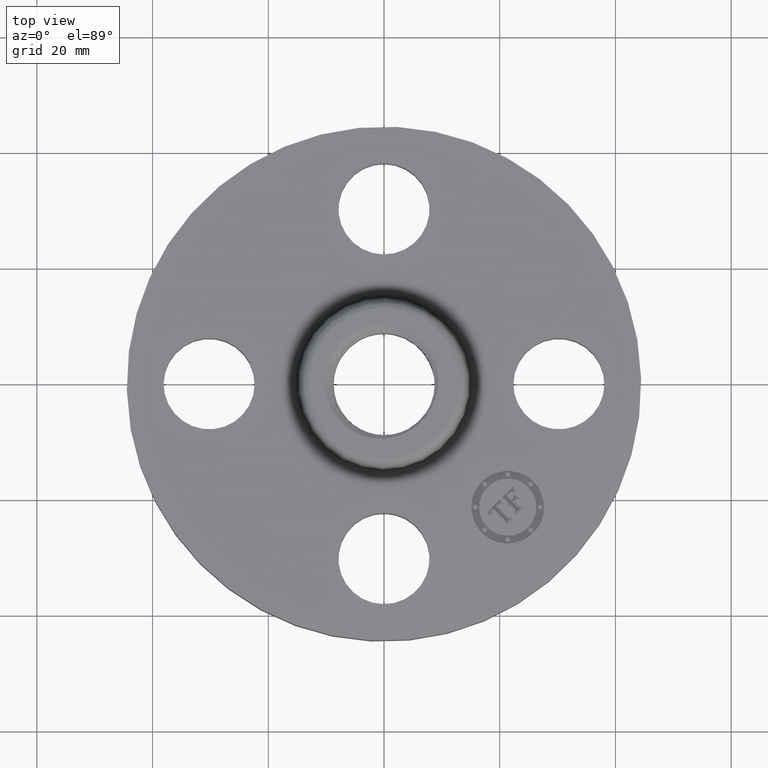
[diagram: clean part render]
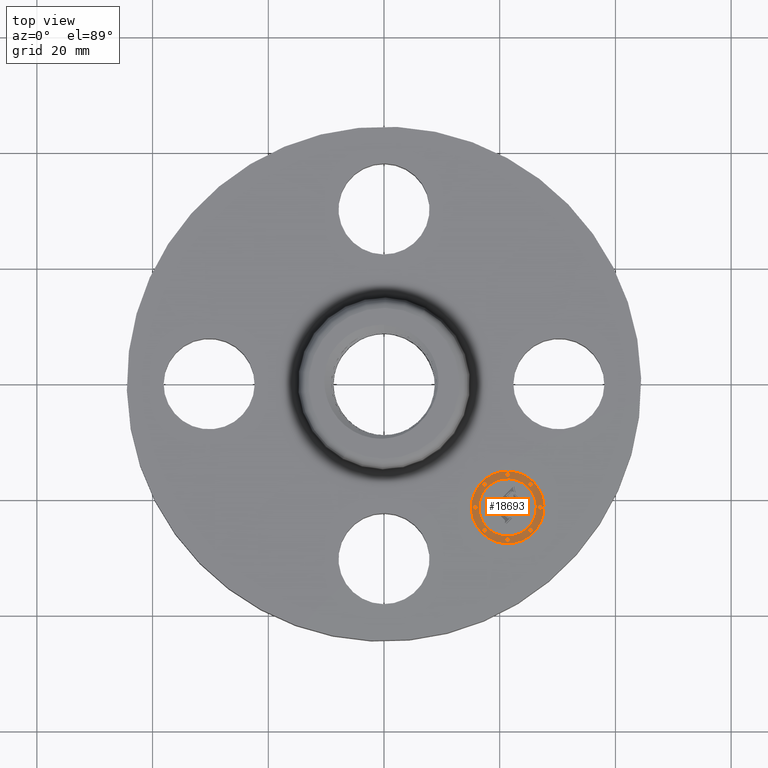
[diagram: same view with one face highlighted and labeled with its STEP entity id]
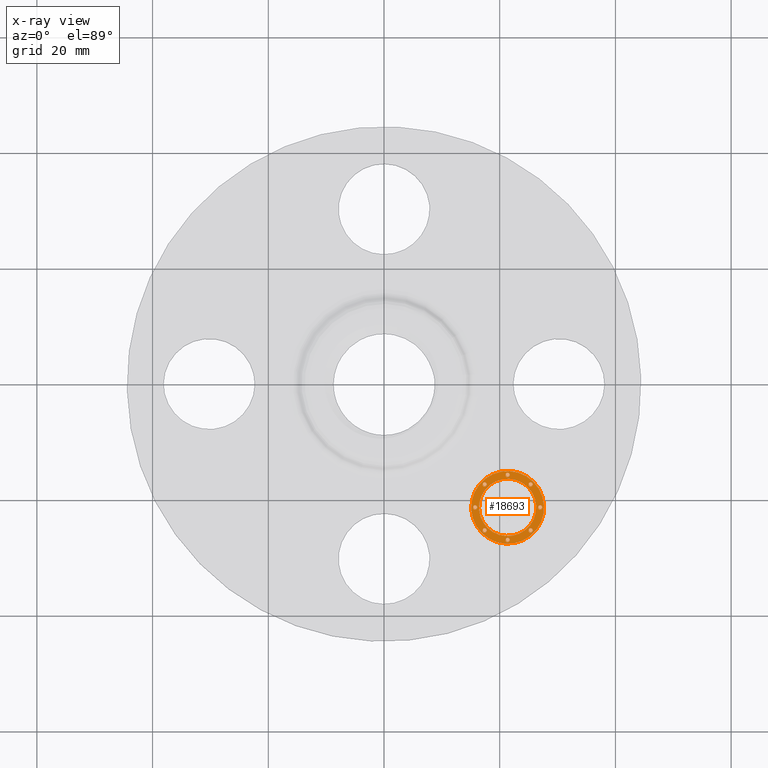
[diagram: x-ray of the same camera — body ghosted, the highlighted face saturated]
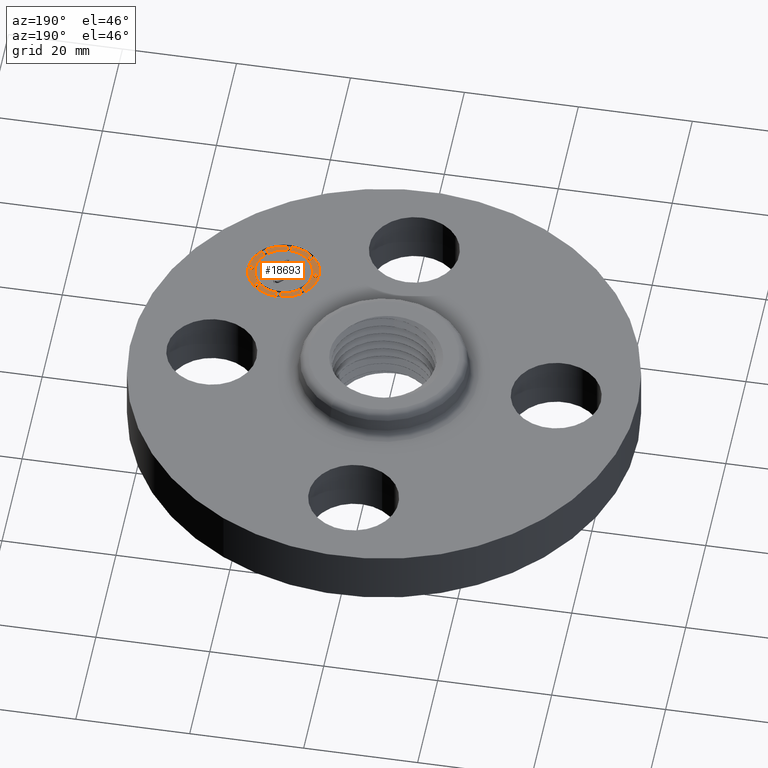
[diagram: same view with one face highlighted and labeled with its STEP entity id]
A machine part, top view. The second image highlights one B-rep face of the part: STEP entity #18693.
The next image is the same camera in x-ray: the body ghosted, the highlighted face saturated — about 0% of this face is hidden behind the body in this view.
A second angle (auxiliary view) of the same face is appended — the face is thin or edge-on in the first view.
In plain terms, the highlighted planar face has unit normal (0, -0, 1).
Its self-contained STEP definition (entity closure, byte-faithful):
#7344=AXIS2_PLACEMENT_3D('Plane Axis2P3D',#7341,#7342,#7343) ;
#18515=AXIS2_PLACEMENT_3D('Circle Axis2P3D',#18513,#18514,$) ;
#18524=AXIS2_PLACEMENT_3D('Circle Axis2P3D',#18522,#18523,$) ;
#18533=AXIS2_PLACEMENT_3D('Circle Axis2P3D',#18531,#18532,$) ;
#18542=AXIS2_PLACEMENT_3D('Circle Axis2P3D',#18540,#18541,$) ;
#18551=AXIS2_PLACEMENT_3D('Circle Axis2P3D',#18549,#18550,$) ;
#18560=AXIS2_PLACEMENT_3D('Circle Axis2P3D',#18558,#18559,$) ;
#18569=AXIS2_PLACEMENT_3D('Circle Axis2P3D',#18567,#18568,$) ;
#18578=AXIS2_PLACEMENT_3D('Circle Axis2P3D',#18576,#18577,$) ;
#18587=AXIS2_PLACEMENT_3D('Circle Axis2P3D',#18585,#18586,$) ;
#18596=AXIS2_PLACEMENT_3D('Circle Axis2P3D',#18594,#18595,$) ;
#18605=AXIS2_PLACEMENT_3D('Circle Axis2P3D',#18603,#18604,$) ;
#18614=AXIS2_PLACEMENT_3D('Circle Axis2P3D',#18612,#18613,$) ;
#18623=AXIS2_PLACEMENT_3D('Circle Axis2P3D',#18621,#18622,$) ;
#18632=AXIS2_PLACEMENT_3D('Circle Axis2P3D',#18630,#18631,$) ;
#18641=AXIS2_PLACEMENT_3D('Circle Axis2P3D',#18639,#18640,$) ;
#18650=AXIS2_PLACEMENT_3D('Circle Axis2P3D',#18648,#18649,$) ;
#18659=AXIS2_PLACEMENT_3D('Circle Axis2P3D',#18657,#18658,$) ;
#18668=AXIS2_PLACEMENT_3D('Circle Axis2P3D',#18666,#18667,$) ;
#18677=AXIS2_PLACEMENT_3D('Circle Axis2P3D',#18675,#18676,$) ;
#18686=AXIS2_PLACEMENT_3D('Circle Axis2P3D',#18684,#18685,$) ;
#7341=CARTESIAN_POINT('Axis2P3D Location',(0.,0.,0.365000000001)) ;
#18513=CARTESIAN_POINT('Axis2P3D Location',(0.841457069615,-0.841457069615,0.365000000001)) ;
#18517=CARTESIAN_POINT('Vertex',(1.01646599796,-0.666448141271,0.365000000001)) ;
#18519=CARTESIAN_POINT('Vertex',(0.666448141271,-1.01646599796,0.365000000001)) ;
#18522=CARTESIAN_POINT('Axis2P3D Location',(0.841457069615,-0.841457069615,0.365000000001)) ;
#18531=CARTESIAN_POINT('Axis2P3D Location',(0.841457069615,-0.841457069615,0.365000000001)) ;
#18535=CARTESIAN_POINT('Vertex',(0.703571247283,-0.979342891947,0.365000000001)) ;
#18537=CARTESIAN_POINT('Vertex',(0.979342891947,-0.703571247283,0.365000000001)) ;
#18540=CARTESIAN_POINT('Axis2P3D Location',(0.841457069615,-0.841457069615,0.365000000001)) ;
#18549=CARTESIAN_POINT('Axis2P3D Location',(0.685009694277,-0.685009694277,0.365000000001)) ;
#18553=CARTESIAN_POINT('Vertex',(0.674403092559,-0.695616295995,0.365000000001)) ;
#18555=CARTESIAN_POINT('Vertex',(0.695616295995,-0.674403092559,0.365000000001)) ;
#18558=CARTESIAN_POINT('Axis2P3D Location',(0.685009694277,-0.685009694277,0.365000000001)) ;
#18567=CARTESIAN_POINT('Axis2P3D Location',(0.997904444954,-0.685009694277,0.365000000001)) ;
#18571=CARTESIAN_POINT('Vertex',(0.987297843236,-0.695616295995,0.365000000001)) ;
#18573=CARTESIAN_POINT('Vertex',(1.00851104667,-0.674403092559,0.365000000001)) ;
#18576=CARTESIAN_POINT('Axis2P3D Location',(0.997904444954,-0.685009694277,0.365000000001)) ;
#18585=CARTESIAN_POINT('Axis2P3D Location',(0.841457069615,-0.620207069614,0.365000000001)) ;
#18589=CARTESIAN_POINT('Vertex',(0.830850467898,-0.630813671332,0.365000000001)) ;
#18591=CARTESIAN_POINT('Vertex',(0.852063671333,-0.609600467897,0.365000000001)) ;
#18594=CARTESIAN_POINT('Axis2P3D Location',(0.841457069615,-0.620207069614,0.365000000001)) ;
#18603=CARTESIAN_POINT('Axis2P3D Location',(0.997904444954,-0.997904444954,0.365000000001)) ;
#18607=CARTESIAN_POINT('Vertex',(0.987297843236,-1.00851104667,0.365000000001)) ;
#18609=CARTESIAN_POINT('Vertex',(1.00851104667,-0.987297843236,0.365000000001)) ;
#18612=CARTESIAN_POINT('Axis2P3D Location',(0.997904444954,-0.997904444954,0.365000000001)) ;
#18621=CARTESIAN_POINT('Axis2P3D Location',(1.06270706962,-0.841457069615,0.365000000001)) ;
#18625=CARTESIAN_POINT('Vertex',(1.0521004679,-0.852063671333,0.365000000001)) ;
#18627=CARTESIAN_POINT('Vertex',(1.07331367133,-0.830850467898,0.365000000001)) ;
#18630=CARTESIAN_POINT('Axis2P3D Location',(1.06270706962,-0.841457069615,0.365000000001)) ;
#18639=CARTESIAN_POINT('Axis2P3D Location',(0.685009694277,-0.997904444954,0.365000000001)) ;
#18643=CARTESIAN_POINT('Vertex',(0.695616295995,-0.987297843236,0.365000000001)) ;
#18645=CARTESIAN_POINT('Vertex',(0.674403092559,-1.00851104667,0.365000000001)) ;
#18648=CARTESIAN_POINT('Axis2P3D Location',(0.685009694277,-0.997904444954,0.365000000001)) ;
#18657=CARTESIAN_POINT('Axis2P3D Location',(0.620207069614,-0.841457069615,0.365000000001)) ;
#18661=CARTESIAN_POINT('Vertex',(0.630813671332,-0.830850467898,0.365000000001)) ;
#18663=CARTESIAN_POINT('Vertex',(0.609600467897,-0.852063671333,0.365000000001)) ;
#18666=CARTESIAN_POINT('Axis2P3D Location',(0.620207069614,-0.841457069615,0.365000000001)) ;
#18675=CARTESIAN_POINT('Axis2P3D Location',(0.841457069615,-1.06270706962,0.365000000001)) ;
#18679=CARTESIAN_POINT('Vertex',(0.852063671333,-1.0521004679,0.365000000001)) ;
#18681=CARTESIAN_POINT('Vertex',(0.830850467898,-1.07331367133,0.365000000001)) ;
#18684=CARTESIAN_POINT('Axis2P3D Location',(0.841457069615,-1.06270706962,0.365000000001)) ;
#7342=DIRECTION('Axis2P3D Direction',(0.,-0.,0.0393700787402)) ;
#7343=DIRECTION('Axis2P3D XDirection',(0.027838849653,0.027838849653,0.)) ;
#18514=DIRECTION('Axis2P3D Direction',(0.,-0.,0.0393700787402)) ;
#18523=DIRECTION('Axis2P3D Direction',(0.,-0.,0.0393700787402)) ;
#18532=DIRECTION('Axis2P3D Direction',(0.,-0.,0.0393700787402)) ;
#18541=DIRECTION('Axis2P3D Direction',(0.,-0.,0.0393700787402)) ;
#18550=DIRECTION('Axis2P3D Direction',(0.,-0.,0.0393700787402)) ;
#18559=DIRECTION('Axis2P3D Direction',(0.,-0.,0.0393700787402)) ;
#18568=DIRECTION('Axis2P3D Direction',(0.,-0.,0.0393700787402)) ;
#18577=DIRECTION('Axis2P3D Direction',(0.,-0.,0.0393700787402)) ;
#18586=DIRECTION('Axis2P3D Direction',(0.,-0.,0.0393700787402)) ;
#18595=DIRECTION('Axis2P3D Direction',(0.,-0.,0.0393700787402)) ;
#18604=DIRECTION('Axis2P3D Direction',(0.,-0.,0.0393700787402)) ;
#18613=DIRECTION('Axis2P3D Direction',(0.,-0.,0.0393700787402)) ;
#18622=DIRECTION('Axis2P3D Direction',(0.,-0.,0.0393700787402)) ;
#18631=DIRECTION('Axis2P3D Direction',(0.,-0.,0.0393700787402)) ;
#18640=DIRECTION('Axis2P3D Direction',(0.,-0.,0.0393700787402)) ;
#18649=DIRECTION('Axis2P3D Direction',(0.,-0.,0.0393700787402)) ;
#18658=DIRECTION('Axis2P3D Direction',(0.,-0.,0.0393700787402)) ;
#18667=DIRECTION('Axis2P3D Direction',(0.,-0.,0.0393700787402)) ;
#18676=DIRECTION('Axis2P3D Direction',(0.,-0.,0.0393700787402)) ;
#18685=DIRECTION('Axis2P3D Direction',(0.,-0.,0.0393700787402)) ;
#18528=ORIENTED_EDGE('',*,*,#18521,.T.) ;
#18529=ORIENTED_EDGE('',*,*,#18526,.T.) ;
#18546=ORIENTED_EDGE('',*,*,#18539,.F.) ;
#18547=ORIENTED_EDGE('',*,*,#18544,.F.) ;
#18564=ORIENTED_EDGE('',*,*,#18557,.F.) ;
#18565=ORIENTED_EDGE('',*,*,#18562,.F.) ;
#18582=ORIENTED_EDGE('',*,*,#18575,.F.) ;
#18583=ORIENTED_EDGE('',*,*,#18580,.F.) ;
#18600=ORIENTED_EDGE('',*,*,#18593,.F.) ;
#18601=ORIENTED_EDGE('',*,*,#18598,.F.) ;
#18618=ORIENTED_EDGE('',*,*,#18611,.F.) ;
#18619=ORIENTED_EDGE('',*,*,#18616,.F.) ;
#18636=ORIENTED_EDGE('',*,*,#18629,.F.) ;
#18637=ORIENTED_EDGE('',*,*,#18634,.F.) ;
#18654=ORIENTED_EDGE('',*,*,#18647,.F.) ;
#18655=ORIENTED_EDGE('',*,*,#18652,.F.) ;
#18672=ORIENTED_EDGE('',*,*,#18665,.F.) ;
#18673=ORIENTED_EDGE('',*,*,#18670,.F.) ;
#18690=ORIENTED_EDGE('',*,*,#18683,.F.) ;
#18691=ORIENTED_EDGE('',*,*,#18688,.F.) ;
#18548=FACE_BOUND('',#18545,.T.) ;
#18566=FACE_BOUND('',#18563,.T.) ;
#18584=FACE_BOUND('',#18581,.T.) ;
#18602=FACE_BOUND('',#18599,.T.) ;
#18620=FACE_BOUND('',#18617,.T.) ;
#18638=FACE_BOUND('',#18635,.T.) ;
#18656=FACE_BOUND('',#18653,.T.) ;
#18674=FACE_BOUND('',#18671,.T.) ;
#18692=FACE_BOUND('',#18689,.T.) ;
#18693=ADVANCED_FACE('PartBody',(#18530,#18548,#18566,#18584,#18602,#18620,#18638,#18656,#18674,#18692),#7345,.T.) ;
#18516=CIRCLE('generated circle',#18515,0.247500000001) ;
#18525=CIRCLE('generated circle',#18524,0.247500000001) ;
#18534=CIRCLE('generated circle',#18533,0.195000000001) ;
#18543=CIRCLE('generated circle',#18542,0.195000000001) ;
#18552=CIRCLE('generated circle',#18551,0.0150000000001) ;
#18561=CIRCLE('generated circle',#18560,0.0150000000001) ;
#18570=CIRCLE('generated circle',#18569,0.0150000000001) ;
#18579=CIRCLE('generated circle',#18578,0.0150000000001) ;
#18588=CIRCLE('generated circle',#18587,0.0150000000001) ;
#18597=CIRCLE('generated circle',#18596,0.0150000000001) ;
#18606=CIRCLE('generated circle',#18605,0.0150000000001) ;
#18615=CIRCLE('generated circle',#18614,0.0150000000001) ;
#18624=CIRCLE('generated circle',#18623,0.0150000000001) ;
#18633=CIRCLE('generated circle',#18632,0.0150000000001) ;
#18642=CIRCLE('generated circle',#18641,0.0150000000001) ;
#18651=CIRCLE('generated circle',#18650,0.0150000000001) ;
#18660=CIRCLE('generated circle',#18659,0.0150000000001) ;
#18669=CIRCLE('generated circle',#18668,0.0150000000001) ;
#18678=CIRCLE('generated circle',#18677,0.0150000000001) ;
#18687=CIRCLE('generated circle',#18686,0.0150000000001) ;
#18521=EDGE_CURVE('',#18518,#18520,#18516,.T.) ;
#18526=EDGE_CURVE('',#18520,#18518,#18525,.T.) ;
#18539=EDGE_CURVE('',#18536,#18538,#18534,.T.) ;
#18544=EDGE_CURVE('',#18538,#18536,#18543,.T.) ;
#18557=EDGE_CURVE('',#18554,#18556,#18552,.T.) ;
#18562=EDGE_CURVE('',#18556,#18554,#18561,.T.) ;
#18575=EDGE_CURVE('',#18572,#18574,#18570,.T.) ;
#18580=EDGE_CURVE('',#18574,#18572,#18579,.T.) ;
#18593=EDGE_CURVE('',#18590,#18592,#18588,.T.) ;
#18598=EDGE_CURVE('',#18592,#18590,#18597,.T.) ;
#18611=EDGE_CURVE('',#18608,#18610,#18606,.T.) ;
#18616=EDGE_CURVE('',#18610,#18608,#18615,.T.) ;
#18629=EDGE_CURVE('',#18626,#18628,#18624,.T.) ;
#18634=EDGE_CURVE('',#18628,#18626,#18633,.T.) ;
#18647=EDGE_CURVE('',#18644,#18646,#18642,.T.) ;
#18652=EDGE_CURVE('',#18646,#18644,#18651,.T.) ;
#18665=EDGE_CURVE('',#18662,#18664,#18660,.T.) ;
#18670=EDGE_CURVE('',#18664,#18662,#18669,.T.) ;
#18683=EDGE_CURVE('',#18680,#18682,#18678,.T.) ;
#18688=EDGE_CURVE('',#18682,#18680,#18687,.T.) ;
#18527=EDGE_LOOP('',(#18528,#18529)) ;
#18545=EDGE_LOOP('',(#18546,#18547)) ;
#18563=EDGE_LOOP('',(#18564,#18565)) ;
#18581=EDGE_LOOP('',(#18582,#18583)) ;
#18599=EDGE_LOOP('',(#18600,#18601)) ;
#18617=EDGE_LOOP('',(#18618,#18619)) ;
#18635=EDGE_LOOP('',(#18636,#18637)) ;
#18653=EDGE_LOOP('',(#18654,#18655)) ;
#18671=EDGE_LOOP('',(#18672,#18673)) ;
#18689=EDGE_LOOP('',(#18690,#18691)) ;
#18530=FACE_OUTER_BOUND('',#18527,.T.) ;
#7345=PLANE('',#7344) ;
#18518=VERTEX_POINT('',#18517) ;
#18520=VERTEX_POINT('',#18519) ;
#18536=VERTEX_POINT('',#18535) ;
#18538=VERTEX_POINT('',#18537) ;
#18554=VERTEX_POINT('',#18553) ;
#18556=VERTEX_POINT('',#18555) ;
#18572=VERTEX_POINT('',#18571) ;
#18574=VERTEX_POINT('',#18573) ;
#18590=VERTEX_POINT('',#18589) ;
#18592=VERTEX_POINT('',#18591) ;
#18608=VERTEX_POINT('',#18607) ;
#18610=VERTEX_POINT('',#18609) ;
#18626=VERTEX_POINT('',#18625) ;
#18628=VERTEX_POINT('',#18627) ;
#18644=VERTEX_POINT('',#18643) ;
#18646=VERTEX_POINT('',#18645) ;
#18662=VERTEX_POINT('',#18661) ;
#18664=VERTEX_POINT('',#18663) ;
#18680=VERTEX_POINT('',#18679) ;
#18682=VERTEX_POINT('',#18681) ;